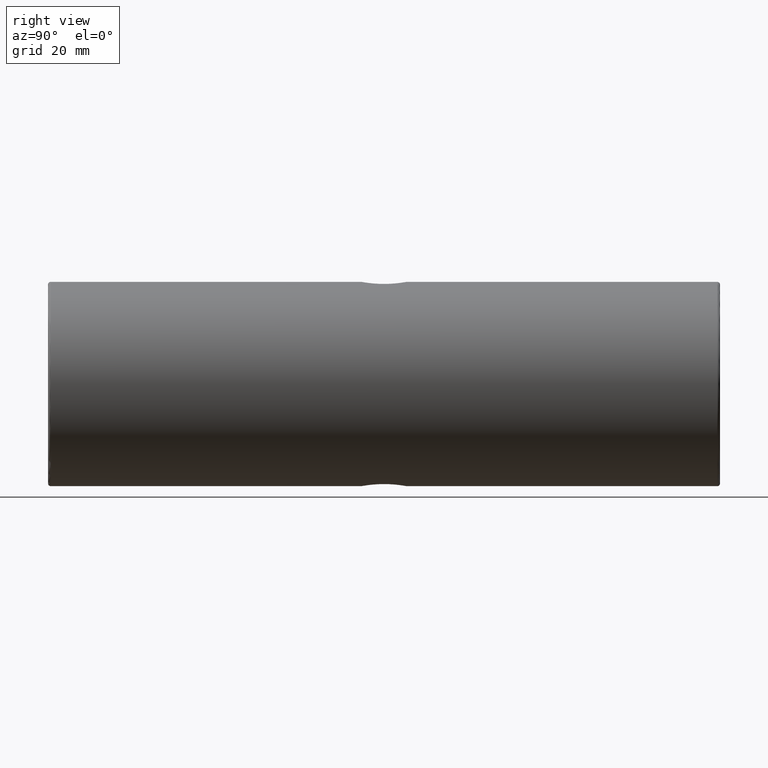
[diagram: clean part render]
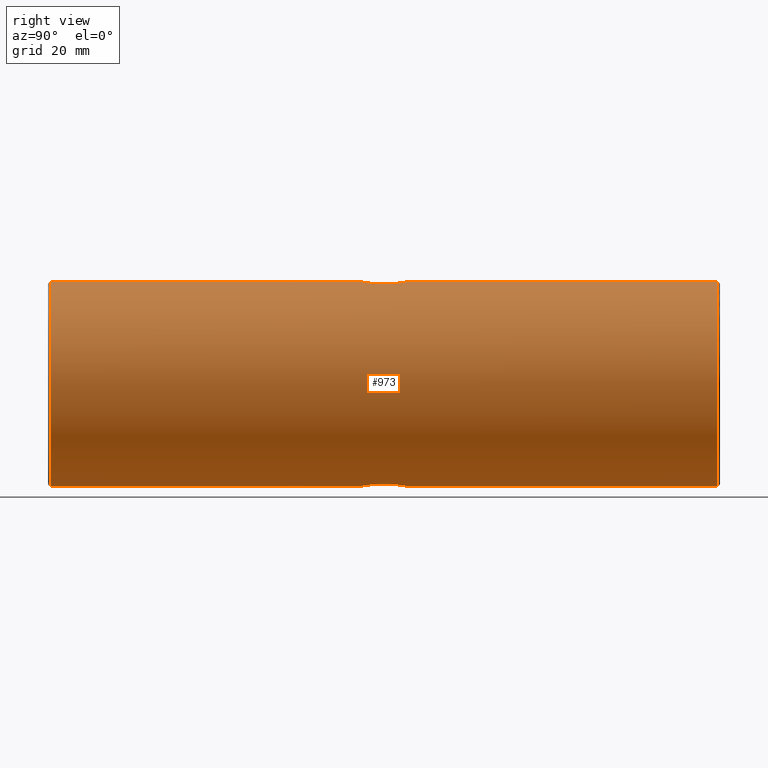
[diagram: same view with one face highlighted and labeled with its STEP entity id]
A machine part, right view. The second image highlights one B-rep face of the part: STEP entity #973.
In plain terms, the highlighted cylindrical surface (partial cylindrical patch) has radius 19 mm, axis along (-0, -1, -0).
Its self-contained STEP definition (entity closure, byte-faithful):
#2 = AXIS2_PLACEMENT_3D ( 'NONE', #337, #737, #91 ) ;
#5 = CARTESIAN_POINT ( 'NONE',  ( -85.22679983354142053, -66.26133999167429067, 400.0000000000000000 ) ) ;
#14 = LINE ( 'NONE', #336, #630 ) ;
#17 = ORIENTED_EDGE ( 'NONE', *, *, #265, .T. ) ;
#23 = ORIENTED_EDGE ( 'NONE', *, *, #475, .F. ) ;
#24 = VERTEX_POINT ( 'NONE', #430 ) ;
#41 = CARTESIAN_POINT ( 'NONE',  ( -84.69707466841043697, -0.09239770115273915341, 418.9943257409157127 ) ) ;
#45 = CARTESIAN_POINT ( 'NONE',  ( -83.93808702169893365, -8.222923423920713404, 418.9577223027167747 ) ) ;
#51 = CIRCLE ( 'NONE', #682, 19.00000000000001776 ) ;
#53 = CARTESIAN_POINT ( 'NONE',  ( -82.29671814351611658, -6.957786961682561611, 418.7735023986901979 ) ) ;
#60 = CARTESIAN_POINT ( 'NONE',  ( -81.52508446630257311, -5.300719478809653218, 418.6359698950037682 ) ) ;
#61 = VERTEX_POINT ( 'NONE', #987 ) ;
#76 = CARTESIAN_POINT ( 'NONE',  ( -81.41341497436532393, -4.261339991674277350, 381.3866151408238920 ) ) ;
#82 = LINE ( 'NONE', #616, #780 ) ;
#87 = CARTESIAN_POINT ( 'NONE',  ( -83.46626106639050136, -7.995107640163255702, 381.0802611310913903 ) ) ;
#91 = DIRECTION ( 'NONE',  ( 0.0000000000000000000, 0.0000000000000000000, 1.000000000000000000 ) ) ;
#92 = CARTESIAN_POINT ( 'NONE',  ( -81.77187972696634688, -2.468561370532886379, 418.6834641745472823 ) ) ;
#96 = CARTESIAN_POINT ( 'NONE',  ( -83.24199987212081453, -0.6676668308104372063, 381.1028212990075872 ) ) ;
#97 = CARTESIAN_POINT ( 'NONE',  ( -81.41341497436532393, -3.997586484548957486, 418.6133848591761648 ) ) ;
#102 = CARTESIAN_POINT ( 'NONE',  ( -83.46511704992532543, -0.5280370949836370453, 381.0803408399271461 ) ) ;
#103 = EDGE_CURVE ( 'NONE', #352, #24, #426, .T. ) ;
#104 = CARTESIAN_POINT ( 'NONE',  ( -82.83102515499484753, -0.9863390833895698817, 418.8494842750069438 ) ) ;
#109 = CARTESIAN_POINT ( 'NONE',  ( -85.22679983354142053, 57.73866000832570933, 419.0000000000000568 ) ) ;
#112 = CARTESIAN_POINT ( 'NONE',  ( -82.64087668775827922, -1.167056617506570415, 418.8240119711596208 ) ) ;
#119 = CARTESIAN_POINT ( 'NONE',  ( -84.69972560880194123, -8.430702186240790041, 418.9944016194976939 ) ) ;
#170 = CARTESIAN_POINT ( 'NONE',  ( -82.29571650229409840, -1.565921010254241796, 381.2266365370629160 ) ) ;
#172 = LINE ( 'NONE', #803, #735 ) ;
#176 = CARTESIAN_POINT ( 'NONE',  ( -85.22679983354142053, -0.06133999167429880772, 381.0000000000000000 ) ) ;
#177 = ORIENTED_EDGE ( 'NONE', *, *, #221, .T. ) ;
#180 = CARTESIAN_POINT ( 'NONE',  ( -83.94119362236200743, -0.2983445582111096117, 381.0420400455853382 ) ) ;
#183 = CARTESIAN_POINT ( 'NONE',  ( -84.18986350246656514, -8.312315706571794749, 381.0266011698889201 ) ) ;
#192 = CARTESIAN_POINT ( 'NONE',  ( -84.96243902164792416, -8.461339991674275751, 419.0000000000001137 ) ) ;
#210 = CARTESIAN_POINT ( 'NONE',  ( -81.77082803723338600, -6.051458313143355028, 381.3167330802414767 ) ) ;
#221 = EDGE_CURVE ( 'NONE', #61, #674, #739, .T. ) ;
#234 = DIRECTION ( 'NONE',  ( -0.0000000000000000000, -1.000000000000000000, -0.0000000000000000000 ) ) ;
#239 = FACE_OUTER_BOUND ( 'NONE', #590, .T. ) ;
#246 = CARTESIAN_POINT ( 'NONE',  ( -81.43639937781146898, -3.732814026306841892, 381.3818647936232082 ) ) ;
#265 = EDGE_CURVE ( 'NONE', #806, #479, #275, .T. ) ;
#267 = CARTESIAN_POINT ( 'NONE',  ( -85.22679983354142053, -8.461339991674268646, 381.0000000000000000 ) ) ;
#275 = CIRCLE ( 'NONE', #2, 19.00000000000001776 ) ;
#282 = CARTESIAN_POINT ( 'NONE',  ( -81.41341497436532393, -4.524701080299160516, 418.6133848591761648 ) ) ;
#285 = CARTESIAN_POINT ( 'NONE',  ( -81.88059113652985843, -6.288202399889226690, 418.7034922552546163 ) ) ;
#287 = ORIENTED_EDGE ( 'NONE', *, *, #103, .F. ) ;
#294 = EDGE_CURVE ( 'NONE', #653, #61, #535, .T. ) ;
#297 = VERTEX_POINT ( 'NONE', #851 ) ;
#317 = DIRECTION ( 'NONE',  ( -0.0000000000000000000, -1.000000000000000000, -0.0000000000000000000 ) ) ;
#323 = CARTESIAN_POINT ( 'NONE',  ( -81.77187972696631846, -2.468561370532884602, 381.3165358254529451 ) ) ;
#336 = CARTESIAN_POINT ( 'NONE',  ( -85.22679983354142053, 58.23866000832570933, 381.0000000000000000 ) ) ;
#337 = CARTESIAN_POINT ( 'NONE',  ( -85.22679983354142053, 57.73866000832570933, 400.0000000000000000 ) ) ;
#338 = CARTESIAN_POINT ( 'NONE',  ( -85.22679983354142053, -0.06133999167429880772, 419.0000000000000568 ) ) ;
#344 = CARTESIAN_POINT ( 'NONE',  ( -81.59279953389886941, -2.964568543362572584, 381.3505402671659681 ) ) ;
#345 = CARTESIAN_POINT ( 'NONE',  ( -81.52612773688036896, -3.217498801581725854, 418.6361777253471814 ) ) ;
#352 = VERTEX_POINT ( 'NONE', #1015 ) ;
#353 = CARTESIAN_POINT ( 'NONE',  ( -84.96243902164792416, -8.461339991674275751, 381.0000000000000568 ) ) ;
#355 = CARTESIAN_POINT ( 'NONE',  ( -81.43586367851925445, -4.785232307264688068, 418.6180255036908306 ) ) ;
#364 = CARTESIAN_POINT ( 'NONE',  ( -82.14309753980985818, -6.741247472261910012, 418.7485603540634429 ) ) ;
#401 = CARTESIAN_POINT ( 'NONE',  ( -82.14497683168238495, -1.778754477084894647, 418.7488661386886406 ) ) ;
#404 = CARTESIAN_POINT ( 'NONE',  ( -85.22679983354142053, -66.26133999167429067, 381.0000000000000000 ) ) ;
#410 = CARTESIAN_POINT ( 'NONE',  ( -83.46511704992533964, -0.5280370949836369343, 418.9196591600729107 ) ) ;
#420 = CARTESIAN_POINT ( 'NONE',  ( -81.41341497436533814, -3.997586484548954822, 381.3866151408237783 ) ) ;
#421 = EDGE_CURVE ( 'NONE', #479, #297, #82, .T. ) ;
#424 = VECTOR ( 'NONE', #958, 1000.000000000000000 ) ;
#426 = B_SPLINE_CURVE_WITH_KNOTS ( 'NONE', 3,
 ( #906, #192, #119, #513, #45, #840, #828, #750, #445, #53, #364, #285, #673, #991, #60, #355, #282, #592 ),
 .UNSPECIFIED., .F., .F.,
 ( 4, 2, 2, 2, 2, 2, 2, 2, 4 ),
 ( 0.003733624680294762854, 0.004520577988407363350, 0.005307531296519963845, 0.006094484604632564341, 0.006881437912745166571, 0.007668391220857767934, 0.008455344528970369297, 0.009242297837082972395, 0.01002925114519557376 ),
 .UNSPECIFIED. ) ;
#430 = CARTESIAN_POINT ( 'NONE',  ( -81.41341497436532393, -4.261339991674279126, 418.6133848591761648 ) ) ;
#433 = EDGE_CURVE ( 'NONE', #748, #907, #51, .T. ) ;
#442 = ORIENTED_EDGE ( 'NONE', *, *, #294, .T. ) ;
#445 = CARTESIAN_POINT ( 'NONE',  ( -82.63814515825626472, -7.352595677616392322, 418.8236191524364926 ) ) ;
#455 = CARTESIAN_POINT ( 'NONE',  ( -82.29671814351611658, -6.957786961682561611, 381.2264976013096884 ) ) ;
#459 = CARTESIAN_POINT ( 'NONE',  ( -81.52508446630257311, -5.300719478809650553, 381.3640301049963455 ) ) ;
#473 = CARTESIAN_POINT ( 'NONE',  ( -85.22679983354142053, 58.23866000832570933, 400.0000000000000000 ) ) ;
#475 = EDGE_CURVE ( 'NONE', #806, #674, #172, .T. ) ;
#476 = CARTESIAN_POINT ( 'NONE',  ( -85.22679983354142053, 57.73866000832570933, 381.0000000000000000 ) ) ;
#477 = CARTESIAN_POINT ( 'NONE',  ( -81.52612773688034054, -3.217498801581724077, 381.3638222746528754 ) ) ;
#479 = VERTEX_POINT ( 'NONE', #109 ) ;
#482 = CARTESIAN_POINT ( 'NONE',  ( -83.94119362236200743, -0.2983445582111095007, 418.9579599544148323 ) ) ;
#488 = CARTESIAN_POINT ( 'NONE',  ( -84.96393248785444996, -0.06133999167429707300, 381.0000000000000000 ) ) ;
#490 = DIRECTION ( 'NONE',  ( 0.0000000000000000000, 0.0000000000000000000, -1.000000000000000000 ) ) ;
#497 = CARTESIAN_POINT ( 'NONE',  ( -81.88335953815429491, -2.229144387579318209, 418.7039841074685000 ) ) ;
#502 = CARTESIAN_POINT ( 'NONE',  ( -83.93808702169893365, -8.222923423920713404, 381.0422776972831116 ) ) ;
#513 = CARTESIAN_POINT ( 'NONE',  ( -84.18986350246656514, -8.312315706571794749, 418.9733988301109093 ) ) ;
#524 = EDGE_CURVE ( 'NONE', #24, #297, #823, .T. ) ;
#531 = CARTESIAN_POINT ( 'NONE',  ( -82.14309753980985818, -6.741247472261910012, 381.2514396459365571 ) ) ;
#535 = B_SPLINE_CURVE_WITH_KNOTS ( 'NONE', 3,
 ( #267, #353, #577, #183, #502, #87, #612, #700, #689, #455, #531, #705, #210, #540, #459, #545, #620, #76 ),
 .UNSPECIFIED., .F., .F.,
 ( 4, 2, 2, 2, 2, 2, 2, 2, 4 ),
 ( 0.003733624680294762854, 0.004520577988407363350, 0.005307531296519963845, 0.006094484604632565208, 0.006881437912745166571, 0.007668391220857769669, 0.008455344528970371032, 0.009242297837082972395, 0.01002925114519557549 ),
 .UNSPECIFIED. ) ;
#537 = DIRECTION ( 'NONE',  ( 0.0000000000000000000, 1.000000000000000000, 0.0000000000000000000 ) ) ;
#540 = CARTESIAN_POINT ( 'NONE',  ( -81.59285872774556481, -5.558021363143366145, 381.3505314850146988 ) ) ;
#545 = CARTESIAN_POINT ( 'NONE',  ( -81.43586367851925445, -4.785232307264686291, 381.3819744963091694 ) ) ;
#546 = ORIENTED_EDGE ( 'NONE', *, *, #524, .F. ) ;
#553 = CYLINDRICAL_SURFACE ( 'NONE', #962, 19.00000000000001776 ) ;
#555 = CARTESIAN_POINT ( 'NONE',  ( -81.43639937781144056, -3.732814026306843225, 418.6181352063767918 ) ) ;
#577 = CARTESIAN_POINT ( 'NONE',  ( -84.69972560880194123, -8.430702186240790041, 381.0055983805024198 ) ) ;
#590 = EDGE_LOOP ( 'NONE', ( #17, #838, #546, #287, #997, #693, #993, #442, #177, #23 ) ) ;
#592 = CARTESIAN_POINT ( 'NONE',  ( -81.41341497436532393, -4.261339991674279126, 418.6133848591761648 ) ) ;
#596 = CARTESIAN_POINT ( 'NONE',  ( -85.22679983354142053, -8.461339991674268646, 381.0000000000000000 ) ) ;
#612 = CARTESIAN_POINT ( 'NONE',  ( -83.24438980785724596, -7.856924346119599889, 381.1025380199827737 ) ) ;
#616 = CARTESIAN_POINT ( 'NONE',  ( -85.22679983354142053, 58.23866000832570933, 419.0000000000000568 ) ) ;
#620 = CARTESIAN_POINT ( 'NONE',  ( -81.41341497436532393, -4.524701080299158740, 381.3866151408239489 ) ) ;
#625 = CARTESIAN_POINT ( 'NONE',  ( -84.96393248785446417, -0.06133999167429705912, 419.0000000000001705 ) ) ;
#630 = VECTOR ( 'NONE', #875, 1000.000000000000000 ) ;
#640 = DIRECTION ( 'NONE',  ( -0.0000000000000000000, -1.000000000000000000, -0.0000000000000000000 ) ) ;
#652 = CARTESIAN_POINT ( 'NONE',  ( -81.59279953389886941, -2.964568543362574360, 418.6494597328340888 ) ) ;
#653 = VERTEX_POINT ( 'NONE', #596 ) ;
#673 = CARTESIAN_POINT ( 'NONE',  ( -81.77082803723338600, -6.051458313143361245, 418.6832669197586370 ) ) ;
#674 = VERTEX_POINT ( 'NONE', #978 ) ;
#682 = AXIS2_PLACEMENT_3D ( 'NONE', #5, #537, #770 ) ;
#689 = CARTESIAN_POINT ( 'NONE',  ( -82.63814515825626472, -7.352595677616392322, 381.1763808475635642 ) ) ;
#693 = ORIENTED_EDGE ( 'NONE', *, *, #433, .T. ) ;
#700 = CARTESIAN_POINT ( 'NONE',  ( -82.82757549099136440, -7.533607839044134558, 381.1509220026484286 ) ) ;
#705 = CARTESIAN_POINT ( 'NONE',  ( -81.88059113652985843, -6.288202399889226690, 381.2965077447454973 ) ) ;
#709 = CARTESIAN_POINT ( 'NONE',  ( -82.64087668775829343, -1.167056617506569971, 381.1759880288403792 ) ) ;
#718 = CARTESIAN_POINT ( 'NONE',  ( -81.41341497436532393, -4.261339991674277350, 381.3866151408238920 ) ) ;
#725 = CARTESIAN_POINT ( 'NONE',  ( -84.69707466841040855, -0.09239770115273913953, 381.0056742590844578 ) ) ;
#726 = CARTESIAN_POINT ( 'NONE',  ( -84.18753268678747759, -0.2111030241652349926, 418.9732691674435046 ) ) ;
#731 = CARTESIAN_POINT ( 'NONE',  ( -81.41341497436532393, -4.261339991674279126, 418.6133848591761648 ) ) ;
#735 = VECTOR ( 'NONE', #234, 1000.000000000000000 ) ;
#737 = DIRECTION ( 'NONE',  ( -0.0000000000000000000, -1.000000000000000000, -0.0000000000000000000 ) ) ;
#738 = CARTESIAN_POINT ( 'NONE',  ( -83.24199987212080032, -0.6676668308104377614, 418.8971787009924697 ) ) ;
#739 = B_SPLINE_CURVE_WITH_KNOTS ( 'NONE', 3,
 ( #718, #420, #246, #477, #344, #323, #796, #895, #170, #709, #890, #96, #102, #180, #870, #725, #488, #176 ),
 .UNSPECIFIED., .F., .F.,
 ( 4, 2, 2, 2, 2, 2, 2, 2, 4 ),
 ( 0.01002925114519557549, 0.01081737704504791807, 0.01160550294490026065, 0.01239362884475260496, 0.01318175474460494753, 0.01396988064445729011, 0.01475800654430963268, 0.01554613244416197526, 0.01633425834401431784 ),
 .UNSPECIFIED. ) ;
#748 = VERTEX_POINT ( 'NONE', #917 ) ;
#750 = CARTESIAN_POINT ( 'NONE',  ( -82.82757549099136440, -7.533607839044134558, 418.8490779973516851 ) ) ;
#770 = DIRECTION ( 'NONE',  ( 0.0000000000000000000, 0.0000000000000000000, 1.000000000000000000 ) ) ;
#780 = VECTOR ( 'NONE', #317, 1000.000000000000000 ) ;
#789 = EDGE_CURVE ( 'NONE', #352, #748, #856, .T. ) ;
#795 = CARTESIAN_POINT ( 'NONE',  ( -85.22679983354142053, 58.23866000832570933, 419.0000000000000568 ) ) ;
#796 = CARTESIAN_POINT ( 'NONE',  ( -81.88335953815429491, -2.229144387579305775, 381.2960158925316705 ) ) ;
#803 = CARTESIAN_POINT ( 'NONE',  ( -85.22679983354142053, 58.23866000832570933, 381.0000000000000000 ) ) ;
#806 = VERTEX_POINT ( 'NONE', #476 ) ;
#823 = B_SPLINE_CURVE_WITH_KNOTS ( 'NONE', 3,
 ( #731, #97, #555, #345, #652, #92, #497, #401, #974, #112, #104, #738, #410, #482, #726, #41, #625, #338 ),
 .UNSPECIFIED., .F., .F.,
 ( 4, 2, 2, 2, 2, 2, 2, 2, 4 ),
 ( 0.01002925114519557376, 0.01081737704504791807, 0.01160550294490026065, 0.01239362884475260496, 0.01318175474460494753, 0.01396988064445729011, 0.01475800654430963268, 0.01554613244416197526, 0.01633425834401431784 ),
 .UNSPECIFIED. ) ;
#828 = CARTESIAN_POINT ( 'NONE',  ( -83.24438980785724596, -7.856924346119599889, 418.8974619800173400 ) ) ;
#838 = ORIENTED_EDGE ( 'NONE', *, *, #421, .T. ) ;
#840 = CARTESIAN_POINT ( 'NONE',  ( -83.46626106639050136, -7.995107640163255702, 418.9197388689088370 ) ) ;
#842 = EDGE_CURVE ( 'NONE', #653, #907, #14, .T. ) ;
#851 = CARTESIAN_POINT ( 'NONE',  ( -85.22679983354142053, -0.06133999167429880772, 419.0000000000000568 ) ) ;
#856 = LINE ( 'NONE', #795, #424 ) ;
#870 = CARTESIAN_POINT ( 'NONE',  ( -84.18753268678749180, -0.2111030241652349648, 381.0267308325566091 ) ) ;
#875 = DIRECTION ( 'NONE',  ( -0.0000000000000000000, -1.000000000000000000, -0.0000000000000000000 ) ) ;
#890 = CARTESIAN_POINT ( 'NONE',  ( -82.83102515499486174, -0.9863390833895689935, 381.1505157249931699 ) ) ;
#895 = CARTESIAN_POINT ( 'NONE',  ( -82.14497683168241338, -1.778754477084883101, 381.2511338613114162 ) ) ;
#906 = CARTESIAN_POINT ( 'NONE',  ( -85.22679983354142053, -8.461339991674268646, 419.0000000000000568 ) ) ;
#907 = VERTEX_POINT ( 'NONE', #404 ) ;
#917 = CARTESIAN_POINT ( 'NONE',  ( -85.22679983354142053, -66.26133999167429067, 419.0000000000000568 ) ) ;
#958 = DIRECTION ( 'NONE',  ( -0.0000000000000000000, -1.000000000000000000, -0.0000000000000000000 ) ) ;
#962 = AXIS2_PLACEMENT_3D ( 'NONE', #473, #640, #490 ) ;
#973 = ADVANCED_FACE ( 'NONE', ( #239 ), #553, .T. ) ;
#974 = CARTESIAN_POINT ( 'NONE',  ( -82.29571650229409840, -1.565921010254242685, 418.7733634629371409 ) ) ;
#978 = CARTESIAN_POINT ( 'NONE',  ( -85.22679983354142053, -0.06133999167429880772, 381.0000000000000000 ) ) ;
#987 = CARTESIAN_POINT ( 'NONE',  ( -81.41341497436532393, -4.261339991674277350, 381.3866151408238920 ) ) ;
#991 = CARTESIAN_POINT ( 'NONE',  ( -81.59285872774556481, -5.558021363143371474, 418.6494685149854149 ) ) ;
#993 = ORIENTED_EDGE ( 'NONE', *, *, #842, .F. ) ;
#997 = ORIENTED_EDGE ( 'NONE', *, *, #789, .T. ) ;
#1015 = CARTESIAN_POINT ( 'NONE',  ( -85.22679983354142053, -8.461339991674268646, 419.0000000000000568 ) ) ;